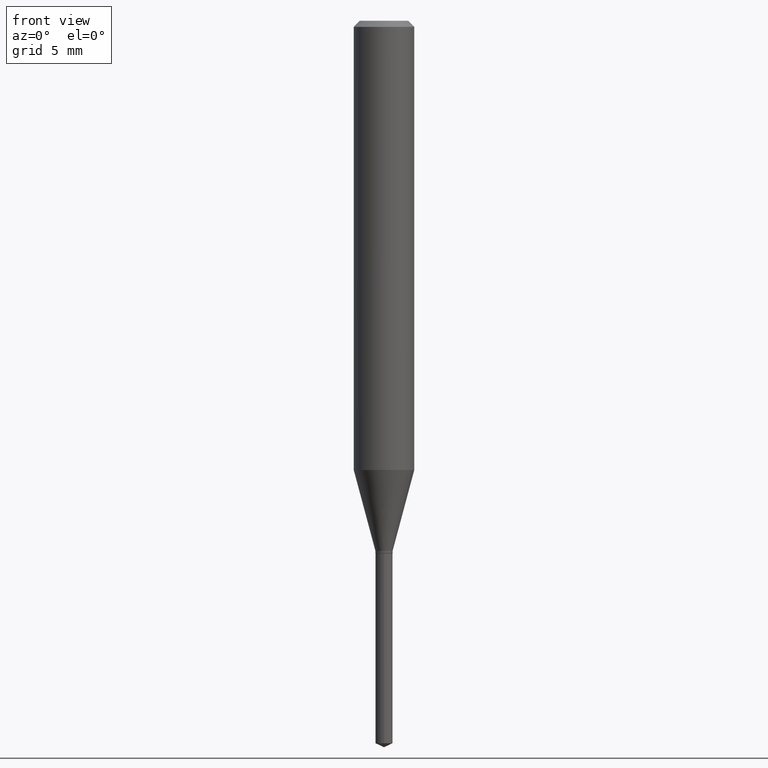
[diagram: clean part render]
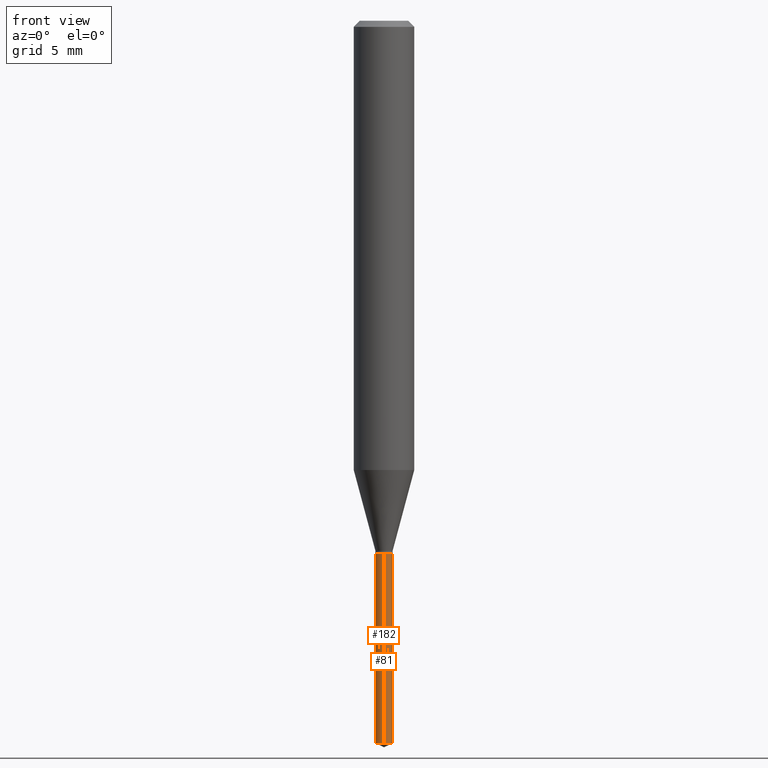
[diagram: same view with one multi-face feature highlighted, each face labeled with its STEP entity id]
A machine part, front view. The highlighted faces form ONE feature: a constant-radius fillet chain: 2 tangent blend faces with common blend radius 0.4496 mm. The faces share edges in the B-rep.
Their STEP definitions:
[1] entity #81 (Cylinder):
#5 = AXIS2_PLACEMENT_3D ( 'NONE', #134, #209, #207 ) ;
#22 = VECTOR ( 'NONE', #358, 39.37007874015748143 ) ;
#42 = DIRECTION ( 'NONE',  ( -2.445399690415121810E-29, 3.491580316559632610E-15, 1.000000000000000000 ) ) ;
#66 = EDGE_LOOP ( 'NONE', ( #274, #231, #439, #225 ) ) ;
#70 = DIRECTION ( 'NONE',  ( -6.982962677686265133E-15, -1.000000000000000000, 0.000000000000000000 ) ) ;
#76 = CIRCLE ( 'NONE', #473, 0.01770000000000000046 ) ;
#77 = VERTEX_POINT ( 'NONE', #471 ) ;
#81 = ADVANCED_FACE ( 'NONE', ( #391 ), #285, .T. ) ;
#82 = CARTESIAN_POINT ( 'NONE',  ( -1.235984393950199948E-16, -0.01770000000000384113, -1.100000000000000089 ) ) ;
#85 = VERTEX_POINT ( 'NONE', #292 ) ;
#98 = EDGE_CURVE ( 'NONE', #85, #401, #251, .T. ) ;
#125 = AXIS2_PLACEMENT_3D ( 'NONE', #139, #178, #330 ) ;
#134 = CARTESIAN_POINT ( 'NONE',  ( 2.690015686803650369E-29, -3.840629472727460101E-15, -1.100000000000000089 ) ) ;
#139 = CARTESIAN_POINT ( 'NONE',  ( 3.647992100698539109E-29, -5.208443333011366930E-15, -1.491746354450656620 ) ) ;
#178 = DIRECTION ( 'NONE',  ( -2.445399690415121530E-29, 3.491580316559632610E-15, 1.000000000000000000 ) ) ;
#192 = VERTEX_POINT ( 'NONE', #300 ) ;
#207 = DIRECTION ( 'NONE',  ( -6.982962677686265133E-15, -1.000000000000000000, 0.000000000000000000 ) ) ;
#209 = DIRECTION ( 'NONE',  ( -2.445399690415121530E-29, 3.491580316559632610E-15, 1.000000000000000000 ) ) ;
#225 = ORIENTED_EDGE ( 'NONE', *, *, #98, .F. ) ;
#231 = ORIENTED_EDGE ( 'NONE', *, *, #395, .T. ) ;
#251 = LINE ( 'NONE', #435, #22 ) ;
#271 = CARTESIAN_POINT ( 'NONE',  ( 1.257660642295646314E-16, 0.01769999999999615978, -1.100000000000000089 ) ) ;
#274 = ORIENTED_EDGE ( 'NONE', *, *, #343, .T. ) ;
#279 = CIRCLE ( 'NONE', #125, 0.01769999999999999699 ) ;
#285 = CYLINDRICAL_SURFACE ( 'NONE', #5, 0.01770000000000000046 ) ;
#289 = EDGE_CURVE ( 'NONE', #401, #192, #76, .T. ) ;
#292 = CARTESIAN_POINT ( 'NONE',  ( -1.235984393950104298E-16, -0.01770000000000520810, -1.491746354450656620 ) ) ;
#300 = CARTESIAN_POINT ( 'NONE',  ( 1.257660642295742703E-16, 0.01769999999999615978, -1.100000000000000089 ) ) ;
#304 = DIRECTION ( 'NONE',  ( -2.445399690415121530E-29, 3.491580316559632610E-15, 1.000000000000000000 ) ) ;
#330 = DIRECTION ( 'NONE',  ( -6.982962677686265922E-15, -1.000000000000000000, 0.000000000000000000 ) ) ;
#343 = EDGE_CURVE ( 'NONE', #85, #77, #279, .T. ) ;
#352 = VECTOR ( 'NONE', #42, 39.37007874015748143 ) ;
#358 = DIRECTION ( 'NONE',  ( -2.445399690415121810E-29, 3.491580316559632610E-15, 1.000000000000000000 ) ) ;
#375 = LINE ( 'NONE', #271, #352 ) ;
#391 = FACE_OUTER_BOUND ( 'NONE', #66, .T. ) ;
#395 = EDGE_CURVE ( 'NONE', #77, #192, #375, .T. ) ;
#401 = VERTEX_POINT ( 'NONE', #82 ) ;
#435 = CARTESIAN_POINT ( 'NONE',  ( -1.235984393950199948E-16, -0.01770000000000384113, -1.100000000000000089 ) ) ;
#439 = ORIENTED_EDGE ( 'NONE', *, *, #289, .F. ) ;
#471 = CARTESIAN_POINT ( 'NONE',  ( 1.257660642295741963E-16, 0.01769999999999479282, -1.491746354450656620 ) ) ;
#472 = CARTESIAN_POINT ( 'NONE',  ( 2.690015686803650369E-29, -3.840629472727460101E-15, -1.100000000000000089 ) ) ;
#473 = AXIS2_PLACEMENT_3D ( 'NONE', #472, #304, #70 ) ;
[2] entity #182 (Cylinder):
#1 = EDGE_LOOP ( 'NONE', ( #441, #448, #199, #353 ) ) ;
#3 = DIRECTION ( 'NONE',  ( -2.445399690415121530E-29, 3.491580316559632610E-15, 1.000000000000000000 ) ) ;
#6 = EDGE_CURVE ( 'NONE', #192, #401, #397, .T. ) ;
#22 = VECTOR ( 'NONE', #358, 39.37007874015748143 ) ;
#25 = CIRCLE ( 'NONE', #489, 0.01769999999999999699 ) ;
#35 = EDGE_CURVE ( 'NONE', #77, #85, #25, .T. ) ;
#42 = DIRECTION ( 'NONE',  ( -2.445399690415121810E-29, 3.491580316559632610E-15, 1.000000000000000000 ) ) ;
#65 = DIRECTION ( 'NONE',  ( -2.445399690415121530E-29, 3.491580316559632610E-15, 1.000000000000000000 ) ) ;
#77 = VERTEX_POINT ( 'NONE', #471 ) ;
#82 = CARTESIAN_POINT ( 'NONE',  ( -1.235984393950199948E-16, -0.01770000000000384113, -1.100000000000000089 ) ) ;
#85 = VERTEX_POINT ( 'NONE', #292 ) ;
#98 = EDGE_CURVE ( 'NONE', #85, #401, #251, .T. ) ;
#116 = CARTESIAN_POINT ( 'NONE',  ( 3.647992100698539109E-29, -5.208443333011366930E-15, -1.491746354450656620 ) ) ;
#123 = DIRECTION ( 'NONE',  ( -6.982962677686265133E-15, -1.000000000000000000, 0.000000000000000000 ) ) ;
#140 = AXIS2_PLACEMENT_3D ( 'NONE', #187, #65, #475 ) ;
#182 = ADVANCED_FACE ( 'NONE', ( #470 ), #444, .T. ) ;
#187 = CARTESIAN_POINT ( 'NONE',  ( 2.690015686803650369E-29, -3.840629472727460101E-15, -1.100000000000000089 ) ) ;
#192 = VERTEX_POINT ( 'NONE', #300 ) ;
#199 = ORIENTED_EDGE ( 'NONE', *, *, #98, .T. ) ;
#214 = AXIS2_PLACEMENT_3D ( 'NONE', #416, #383, #123 ) ;
#242 = DIRECTION ( 'NONE',  ( -6.982962677686265922E-15, -1.000000000000000000, 0.000000000000000000 ) ) ;
#251 = LINE ( 'NONE', #435, #22 ) ;
#271 = CARTESIAN_POINT ( 'NONE',  ( 1.257660642295646314E-16, 0.01769999999999615978, -1.100000000000000089 ) ) ;
#292 = CARTESIAN_POINT ( 'NONE',  ( -1.235984393950104298E-16, -0.01770000000000520810, -1.491746354450656620 ) ) ;
#300 = CARTESIAN_POINT ( 'NONE',  ( 1.257660642295742703E-16, 0.01769999999999615978, -1.100000000000000089 ) ) ;
#352 = VECTOR ( 'NONE', #42, 39.37007874015748143 ) ;
#353 = ORIENTED_EDGE ( 'NONE', *, *, #6, .F. ) ;
#358 = DIRECTION ( 'NONE',  ( -2.445399690415121810E-29, 3.491580316559632610E-15, 1.000000000000000000 ) ) ;
#375 = LINE ( 'NONE', #271, #352 ) ;
#383 = DIRECTION ( 'NONE',  ( -2.445399690415121530E-29, 3.491580316559632610E-15, 1.000000000000000000 ) ) ;
#395 = EDGE_CURVE ( 'NONE', #77, #192, #375, .T. ) ;
#397 = CIRCLE ( 'NONE', #214, 0.01770000000000000046 ) ;
#401 = VERTEX_POINT ( 'NONE', #82 ) ;
#416 = CARTESIAN_POINT ( 'NONE',  ( 2.690015686803650369E-29, -3.840629472727460101E-15, -1.100000000000000089 ) ) ;
#435 = CARTESIAN_POINT ( 'NONE',  ( -1.235984393950199948E-16, -0.01770000000000384113, -1.100000000000000089 ) ) ;
#441 = ORIENTED_EDGE ( 'NONE', *, *, #395, .F. ) ;
#444 = CYLINDRICAL_SURFACE ( 'NONE', #140, 0.01770000000000000046 ) ;
#448 = ORIENTED_EDGE ( 'NONE', *, *, #35, .T. ) ;
#470 = FACE_OUTER_BOUND ( 'NONE', #1, .T. ) ;
#471 = CARTESIAN_POINT ( 'NONE',  ( 1.257660642295741963E-16, 0.01769999999999479282, -1.491746354450656620 ) ) ;
#475 = DIRECTION ( 'NONE',  ( -6.982962677686265133E-15, -1.000000000000000000, 0.000000000000000000 ) ) ;
#489 = AXIS2_PLACEMENT_3D ( 'NONE', #116, #3, #242 ) ;